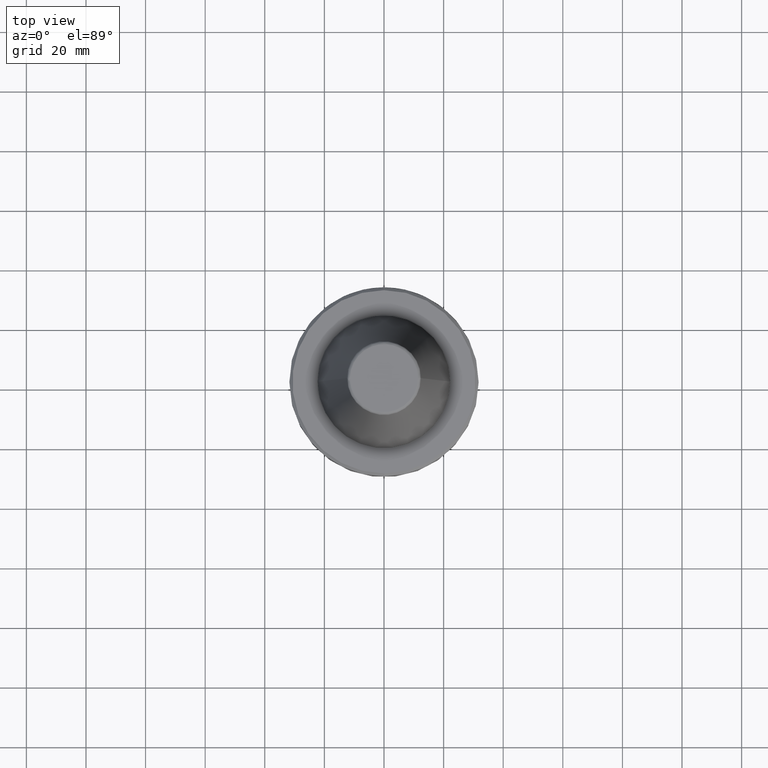
[diagram: clean part render]
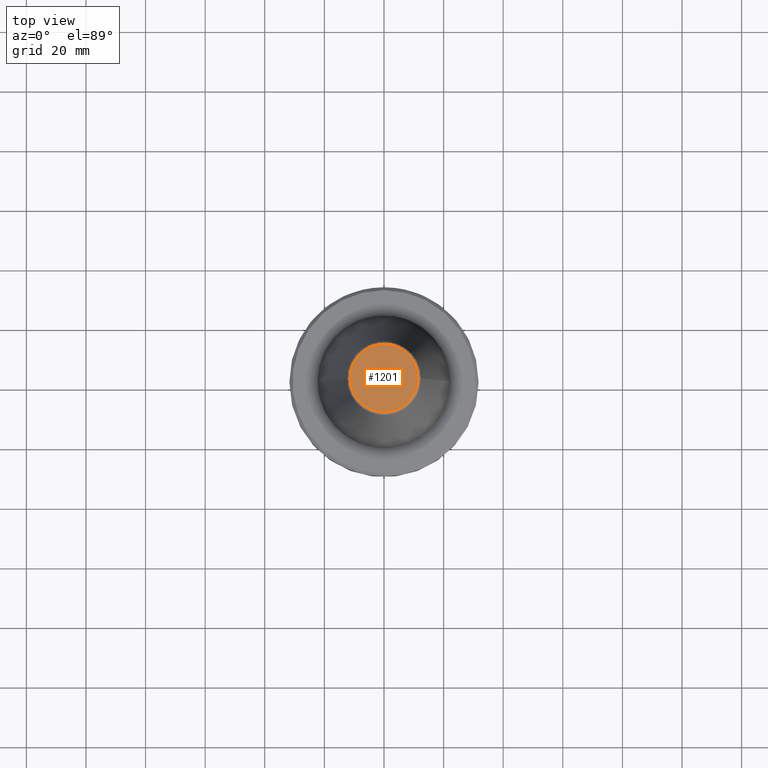
[diagram: same view with one face highlighted and labeled with its STEP entity id]
A machine part, top view. The second image highlights one B-rep face of the part: STEP entity #1201.
In plain terms, the highlighted planar face has unit normal (0, 0, 1).
Its self-contained STEP definition (entity closure, byte-faithful):
#40 = EDGE_CURVE ( 'NONE', #976, #225, #1039, .T. ) ;
#84 = CARTESIAN_POINT ( 'NONE',  ( -11.38516258961893100, 1.418516855507481500E-015, 68.39999999999999100 ) ) ;
#183 = ORIENTED_EDGE ( 'NONE', *, *, #40, .F. ) ;
#225 = VERTEX_POINT ( 'NONE', #481 ) ;
#236 = EDGE_CURVE ( 'NONE', #225, #976, #1510, .T. ) ;
#245 = EDGE_LOOP ( 'NONE', ( #772, #183 ) ) ;
#258 = CARTESIAN_POINT ( 'NONE',  ( 11.38516258961893100, -22.77032517923785800, 68.39999999999999100 ) ) ;
#332 = CARTESIAN_POINT ( 'NONE',  ( -11.38516258961893400, -22.77032517923785800, 68.39999999999999100 ) ) ;
#379 = CARTESIAN_POINT ( 'NONE',  ( -11.38516258961893100, 1.418516855507481500E-015, 68.39999999999999100 ) ) ;
#464 = CARTESIAN_POINT ( 'NONE',  ( 11.38516258961893100, 0.0000000000000000000, 68.39999999999999100 ) ) ;
#481 = CARTESIAN_POINT ( 'NONE',  ( -11.38516258961893100, 1.418516855507481500E-015, 68.39999999999999100 ) ) ;
#491 = CARTESIAN_POINT ( 'NONE',  ( 11.38516258961893100, 22.77032517923785800, 68.39999999999999100 ) ) ;
#507 = CARTESIAN_POINT ( 'NONE',  ( 11.38516258961893100, 0.0000000000000000000, 68.39999999999999100 ) ) ;
#671 = DIRECTION ( 'NONE',  ( 1.000000000000000000, 0.0000000000000000000, -0.0000000000000000000 ) ) ;
#673 = DIRECTION ( 'NONE',  ( 0.0000000000000000000, 0.0000000000000000000, 1.000000000000000000 ) ) ;
#676 = CARTESIAN_POINT ( 'NONE',  ( 0.0000000000000000000, -8.337524199435086500E-014, 68.39999999999999100 ) ) ;
#678 = PLANE ( 'NONE',  #994 ) ;
#772 = ORIENTED_EDGE ( 'NONE', *, *, #236, .F. ) ;
#804 = CARTESIAN_POINT ( 'NONE',  ( -11.38516258961892700, 22.77032517923785800, 68.39999999999999100 ) ) ;
#976 = VERTEX_POINT ( 'NONE', #1050 ) ;
#994 = AXIS2_PLACEMENT_3D ( 'NONE', #676, #673, #671 ) ;
#1039 =( BOUNDED_CURVE ( )  B_SPLINE_CURVE ( 3, ( #507, #258, #332, #379 ),
 .UNSPECIFIED., .F., .T. ) 
 B_SPLINE_CURVE_WITH_KNOTS ( ( 4, 4 ),
 ( 0.0000000000000000000, 1.000000000000000000 ),
 .UNSPECIFIED. ) 
 CURVE ( )  GEOMETRIC_REPRESENTATION_ITEM ( )  RATIONAL_B_SPLINE_CURVE ( ( 1.000000000000000000, 0.3333333333333333700, 0.3333333333333333700, 1.000000000000000000 ) ) 
 REPRESENTATION_ITEM ( '' )  );
#1050 = CARTESIAN_POINT ( 'NONE',  ( 11.38516258961893100, 0.0000000000000000000, 68.39999999999999100 ) ) ;
#1080 = FACE_OUTER_BOUND ( 'NONE', #245, .T. ) ;
#1201 = ADVANCED_FACE ( 'NONE', ( #1080 ), #678, .T. ) ;
#1510 =( BOUNDED_CURVE ( )  B_SPLINE_CURVE ( 3, ( #84, #804, #491, #464 ),
 .UNSPECIFIED., .F., .F. ) 
 B_SPLINE_CURVE_WITH_KNOTS ( ( 4, 4 ),
 ( 0.0000000000000000000, 1.000000000000000000 ),
 .UNSPECIFIED. ) 
 CURVE ( )  GEOMETRIC_REPRESENTATION_ITEM ( )  RATIONAL_B_SPLINE_CURVE ( ( 1.000000000000000000, 0.3333333333333333700, 0.3333333333333333700, 1.000000000000000000 ) ) 
 REPRESENTATION_ITEM ( '' )  );